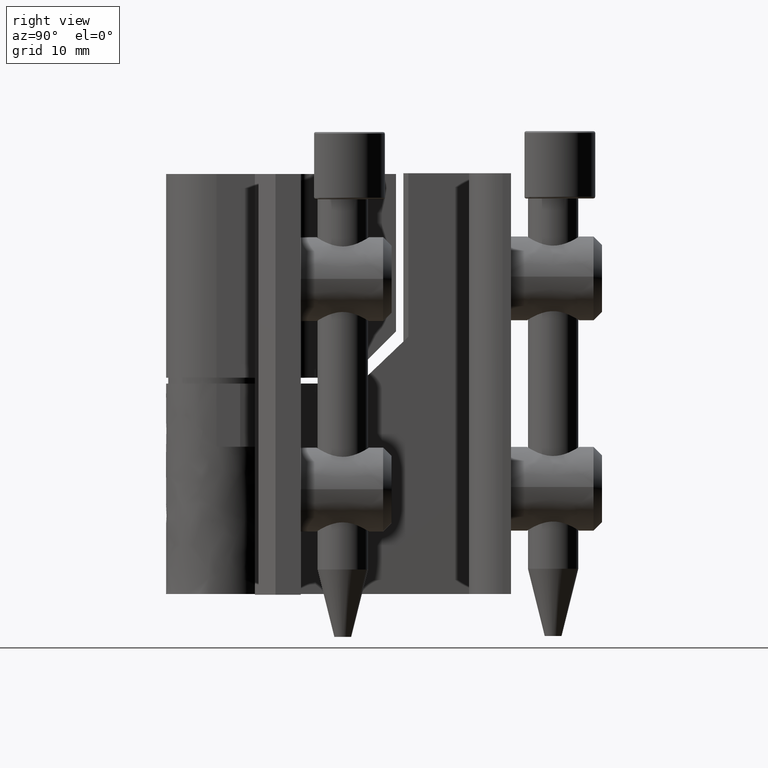
[diagram: clean part render]
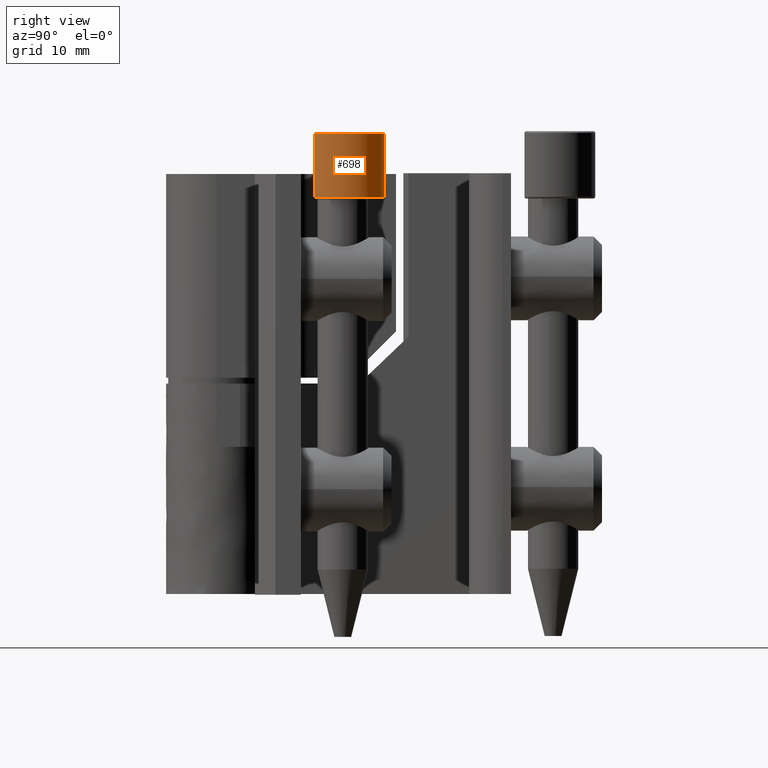
[diagram: same view with one face highlighted and labeled with its STEP entity id]
A machine part, right view. The second image highlights one B-rep face of the part: STEP entity #698.
In plain terms, the highlighted face is a freeform B-spline surface patch.
Its self-contained STEP definition (entity closure, byte-faithful):
#390=CARTESIAN_POINT('',(9.333924156765971,11.600018967005100,54.700002074149900));
#391=VERTEX_POINT('',#390);
#411=CARTESIAN_POINT('',(16.666077573302999,11.600018967005100,54.700002074149900));
#412=VERTEX_POINT('',#411);
#475=CARTESIAN_POINT('',(16.666077573302999,11.600018967005100,54.700002074149900));
#476=CARTESIAN_POINT('',(19.981793439511986,15.175236514170299,54.700002074149907));
#477=CARTESIAN_POINT('',(16.490897152273241,18.579615269617701,54.700002074149900));
#478=CARTESIAN_POINT('',(13.000000865034480,21.983994025065105,54.700002074149907));
#479=CARTESIAN_POINT('',(9.509104577795728,18.579615269617701,54.700002074149900));
#480=CARTESIAN_POINT('',(6.018208290556985,15.175236514170299,54.700002074149907));
#481=CARTESIAN_POINT('',(9.333924156765971,11.600018967005100,54.700002074149900));
#489=(BOUNDED_CURVE()B_SPLINE_CURVE(2,(#475,#476,#477,#478,#479,#480,#481),.UNSPECIFIED.,.F.,.U.)B_SPLINE_CURVE_WITH_KNOTS((3,2,2,3),(0.0,0.333333333333333,0.666666666666667,1.0),.UNSPECIFIED.)CURVE()GEOMETRIC_REPRESENTATION_ITEM()RATIONAL_B_SPLINE_CURVE((1.0,0.715922844218307,1.0,0.715922844218307,1.0,0.715922844218307,1.0))REPRESENTATION_ITEM(''));
#490=EDGE_CURVE('',#412,#391,#489,.T.);
#529=CARTESIAN_POINT('',(9.333924156765971,11.600018967005100,47.100001723103787));
#530=VERTEX_POINT('',#529);
#555=CARTESIAN_POINT('',(16.666077573302999,11.600018967005100,47.100001723103787));
#556=VERTEX_POINT('',#555);
#630=CARTESIAN_POINT('',(9.333924156765971,11.600018967005100,47.100001723103787));
#631=CARTESIAN_POINT('',(6.018208290556971,15.175236514170303,47.100001723103780));
#632=CARTESIAN_POINT('',(9.509104577795725,18.579615269617701,47.100001723103787));
#633=CARTESIAN_POINT('',(13.000000865034474,21.983994025065094,47.100001723103780));
#634=CARTESIAN_POINT('',(16.490897152273231,18.579615269617712,47.100001723103787));
#635=CARTESIAN_POINT('',(19.981793439511989,15.175236514170303,47.100001723103780));
#636=CARTESIAN_POINT('',(16.666077573302999,11.600018967005100,47.100001723103787));
#644=(BOUNDED_CURVE()B_SPLINE_CURVE(2,(#630,#631,#632,#633,#634,#635,#636),.UNSPECIFIED.,.F.,.U.)B_SPLINE_CURVE_WITH_KNOTS((3,2,2,3),(0.0,0.333333333333333,0.666666666666667,1.0),.UNSPECIFIED.)CURVE()GEOMETRIC_REPRESENTATION_ITEM()RATIONAL_B_SPLINE_CURVE((1.0,0.715922844218307,1.0,0.715922844218307,1.0,0.715922844218307,1.0))REPRESENTATION_ITEM(''));
#645=EDGE_CURVE('',#530,#556,#644,.T.);
#655=CARTESIAN_POINT('',(16.666077573302999,11.600018967005100,47.100001723103787));
#656=CARTESIAN_POINT('',(16.666077573302999,11.600018967005100,54.700002074149900));
#657=QUASI_UNIFORM_CURVE('',1,(#655,#656),.UNSPECIFIED.,.F.,.U.);
#658=EDGE_CURVE('',#556,#412,#657,.T.);
#661=CARTESIAN_POINT('',(9.333924156765971,11.600018967005100,47.100001723103787));
#662=CARTESIAN_POINT('',(9.333924156765971,11.600018967005100,54.700002074149900));
#663=QUASI_UNIFORM_CURVE('',1,(#661,#662),.UNSPECIFIED.,.F.,.U.);
#664=EDGE_CURVE('',#530,#391,#663,.T.);
#670=CARTESIAN_POINT('',(16.556658808495140,11.485716766095489,54.890002082926067));
#671=CARTESIAN_POINT('',(16.556658808495140,11.485716766095489,46.905251714108232));
#672=CARTESIAN_POINT('',(20.112072334965521,15.084000945132079,54.890002082926060));
#673=CARTESIAN_POINT('',(20.112072334965521,15.084000945132079,46.905251714108239));
#674=CARTESIAN_POINT('',(16.472663549553690,18.597306805711352,54.890002082926067));
#675=CARTESIAN_POINT('',(16.472663549553690,18.597306805711352,46.905251714108232));
#676=CARTESIAN_POINT('',(12.833254764141850,22.110612666290631,54.890002082926060));
#677=CARTESIAN_POINT('',(12.833254764141850,22.110612666290631,46.905251714108239));
#678=CARTESIAN_POINT('',(9.362532214827875,18.430571992195159,54.890002082926067));
#679=CARTESIAN_POINT('',(9.362532214827875,18.430571992195159,46.905251714108232));
#680=CARTESIAN_POINT('',(5.891809665513899,14.750531318099675,54.890002082926060));
#681=CARTESIAN_POINT('',(5.891809665513899,14.750531318099675,46.905251714108239));
#682=CARTESIAN_POINT('',(9.611984009694076,11.322861960326509,54.890002082926067));
#683=CARTESIAN_POINT('',(9.611984009694076,11.322861960326509,46.905251714108232));
#691=(BOUNDED_SURFACE()B_SPLINE_SURFACE(1,2,((#670,#672,#674,#676,#678,#680,#682),(#671,#673,#675,#677,#679,#681,#683)),.UNSPECIFIED.,.F.,.F.,.U.)B_SPLINE_SURFACE_WITH_KNOTS((2,2),(3,2,2,3),(0.0,7.984750368817842),(0.0,8.352513408057533,16.705026816115069,25.057540224172602),.UNSPECIFIED.)GEOMETRIC_REPRESENTATION_ITEM()RATIONAL_B_SPLINE_SURFACE(((1.0,0.702981057425662,1.0,0.702981057425662,1.0,0.702981057425662,1.0),(1.0,0.702981057425662,1.0,0.702981057425662,1.0,0.702981057425662,1.0)))REPRESENTATION_ITEM('')SURFACE());
#692=ORIENTED_EDGE('',*,*,#664,.T.);
#693=ORIENTED_EDGE('',*,*,#490,.F.);
#694=ORIENTED_EDGE('',*,*,#658,.F.);
#695=ORIENTED_EDGE('',*,*,#645,.F.);
#696=EDGE_LOOP('',(#692,#693,#694,#695));
#697=FACE_OUTER_BOUND('',#696,.T.);
#698=ADVANCED_FACE('',(#697),#691,.T.);